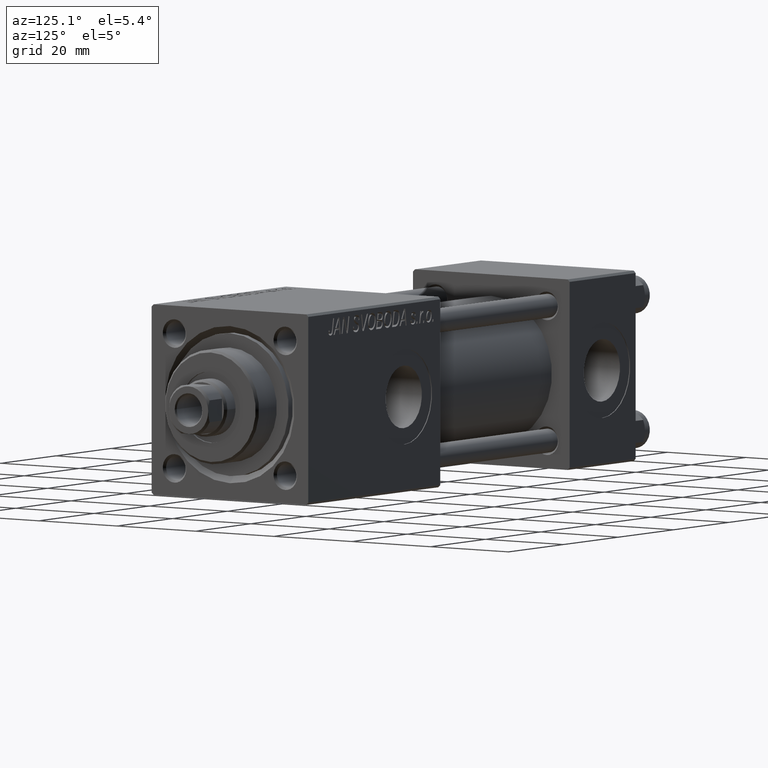
[diagram: clean part render]
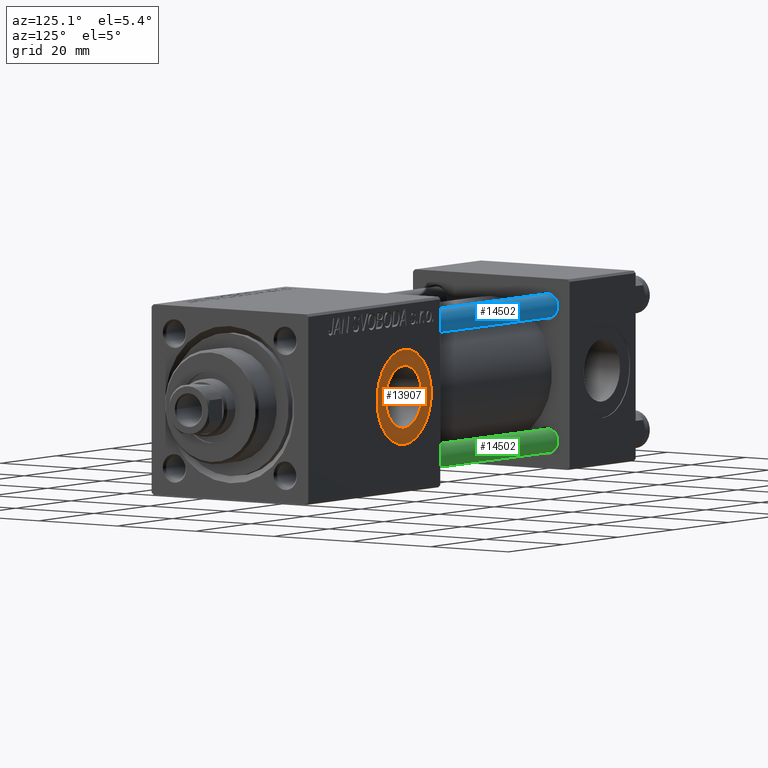
[diagram: same view with three faces highlighted in distinct colors, each labeled with its STEP entity id]
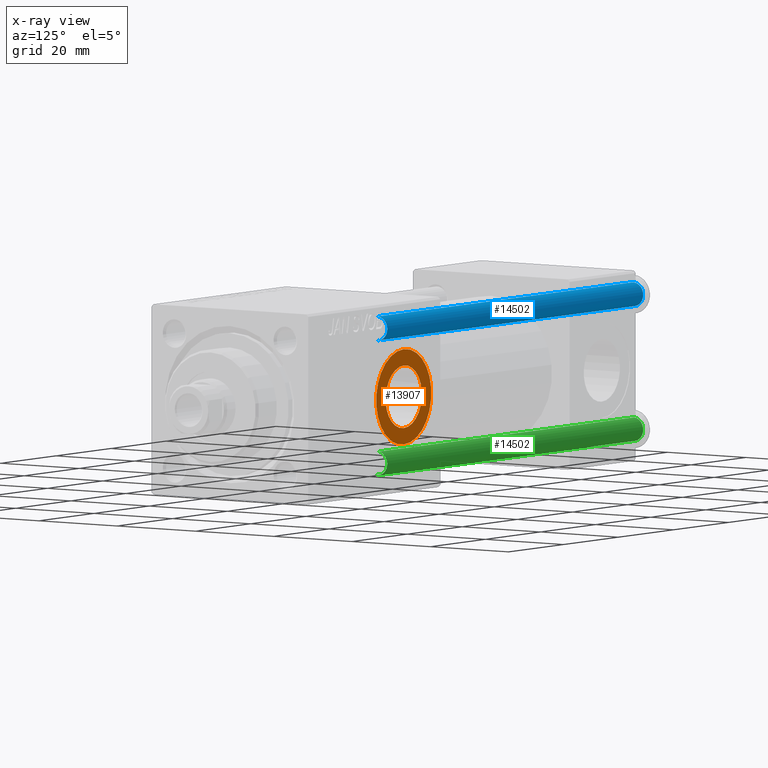
[diagram: x-ray of the same camera — body ghosted, the three highlighted faces saturated]
A machine part, auxiliary view with three faces highlighted in distinct colors.
The next image is the same camera in x-ray (body ghosted, the three faces saturated) — at least one of them is partly hidden behind the body in this view.
Their STEP definitions:

[orange] entity #13907 — the highlighted planar face has unit normal (0, 1, 0).
#4534 = CARTESIAN_POINT ( 'NONE',  ( 84.00000000000000000, 19.79999999999999716, 0.000000000000000000 ) ) ;
#6397 = EDGE_CURVE ( 'NONE', #36899, #20127, #16198, .T. ) ;
#6472 = ORIENTED_EDGE ( 'NONE', *, *, #40405, .T. ) ;
#9147 = CARTESIAN_POINT ( 'NONE',  ( 84.00000000000000000, 19.79999999999999716, 6.580000000001541061 ) ) ;
#11977 = DIRECTION ( 'NONE',  ( 0.000000000000000000, 1.000000000000000000, 0.000000000000000000 ) ) ;
#12143 = DIRECTION ( 'NONE',  ( 0.000000000000000000, 1.000000000000000000, 0.000000000000000000 ) ) ;
#12476 = CARTESIAN_POINT ( 'NONE',  ( 84.00000000000000000, 19.79999999999999716, 0.000000000000000000 ) ) ;
#12646 = CARTESIAN_POINT ( 'NONE',  ( 84.00000000000000000, 19.79999999999999716, 10.00000000000153300 ) ) ;
#13907 = ADVANCED_FACE ( 'NONE', ( #38781, #16698 ), #20011, .T. ) ;
#14082 = EDGE_LOOP ( 'NONE', ( #21300, #30943 ) ) ;
#14695 = DIRECTION ( 'NONE',  ( 0.000000000000000000, 0.000000000000000000, 1.000000000000000000 ) ) ;
#16198 = CIRCLE ( 'NONE', #41281, 6.580000000001541061 ) ;
#16627 = VERTEX_POINT ( 'NONE', #12646 ) ;
#16698 = FACE_OUTER_BOUND ( 'NONE', #35382, .T. ) ;
#17040 = ORIENTED_EDGE ( 'NONE', *, *, #20663, .T. ) ;
#19743 = AXIS2_PLACEMENT_3D ( 'NONE', #49670, #33953, #14695 ) ;
#20011 = PLANE ( 'NONE',  #30043 ) ;
#20127 = VERTEX_POINT ( 'NONE', #26764 ) ;
#20663 = EDGE_CURVE ( 'NONE', #16627, #22763, #33487, .T. ) ;
#21300 = ORIENTED_EDGE ( 'NONE', *, *, #6397, .F. ) ;
#22763 = VERTEX_POINT ( 'NONE', #35033 ) ;
#24367 = DIRECTION ( 'NONE',  ( 0.000000000000000000, 0.000000000000000000, 1.000000000000000000 ) ) ;
#25306 = DIRECTION ( 'NONE',  ( 0.000000000000000000, 0.000000000000000000, 1.000000000000000000 ) ) ;
#25568 = CARTESIAN_POINT ( 'NONE',  ( 84.00000000000000000, 19.79999999999999716, 0.000000000000000000 ) ) ;
#26764 = CARTESIAN_POINT ( 'NONE',  ( 84.00000000000000000, 19.79999999999999716, -6.580000000001541061 ) ) ;
#28099 = DIRECTION ( 'NONE',  ( 0.000000000000000000, -0.000000000000000000, 1.000000000000000000 ) ) ;
#28321 = CARTESIAN_POINT ( 'NONE',  ( 84.00000000000000000, 19.79999999999999716, 0.000000000000000000 ) ) ;
#28745 = AXIS2_PLACEMENT_3D ( 'NONE', #12476, #11977, #24367 ) ;
#30043 = AXIS2_PLACEMENT_3D ( 'NONE', #4534, #12143, #28099 ) ;
#30943 = ORIENTED_EDGE ( 'NONE', *, *, #49554, .F. ) ;
#33487 = CIRCLE ( 'NONE', #19743, 10.00000000000153300 ) ;
#33953 = DIRECTION ( 'NONE',  ( 0.000000000000000000, 1.000000000000000000, 0.000000000000000000 ) ) ;
#35033 = CARTESIAN_POINT ( 'NONE',  ( 84.00000000000000000, 19.79999999999999716, -10.00000000000153300 ) ) ;
#35382 = EDGE_LOOP ( 'NONE', ( #17040, #6472 ) ) ;
#36899 = VERTEX_POINT ( 'NONE', #9147 ) ;
#38322 = AXIS2_PLACEMENT_3D ( 'NONE', #28321, #43797, #44545 ) ;
#38781 = FACE_BOUND ( 'NONE', #14082, .T. ) ;
#40405 = EDGE_CURVE ( 'NONE', #22763, #16627, #44792, .T. ) ;
#41281 = AXIS2_PLACEMENT_3D ( 'NONE', #25568, #41298, #25306 ) ;
#41298 = DIRECTION ( 'NONE',  ( 0.000000000000000000, 1.000000000000000000, 0.000000000000000000 ) ) ;
#43797 = DIRECTION ( 'NONE',  ( 0.000000000000000000, 1.000000000000000000, 0.000000000000000000 ) ) ;
#44545 = DIRECTION ( 'NONE',  ( 0.000000000000000000, 0.000000000000000000, 1.000000000000000000 ) ) ;
#44792 = CIRCLE ( 'NONE', #38322, 10.00000000000153300 ) ;
#48982 = CIRCLE ( 'NONE', #28745, 6.580000000001541061 ) ;
#49554 = EDGE_CURVE ( 'NONE', #20127, #36899, #48982, .T. ) ;
#49670 = CARTESIAN_POINT ( 'NONE',  ( 84.00000000000000000, 19.79999999999999716, 0.000000000000000000 ) ) ;

[blue] entity #14502 — the highlighted cylindrical surface (edge-blend (fillet) strip) has radius 2.5 mm, axis along (-1, 0, 0).
#3164 = CARTESIAN_POINT ( 'NONE',  ( 0.000000000000000000, 0.000000000000000000, 94.00000000000000000 ) ) ;
#3369 = AXIS2_PLACEMENT_3D ( 'NONE', #3164, #15095, #33344 ) ;
#3768 = CARTESIAN_POINT ( 'NONE',  ( -2.500000000000000000, 0.000000000000000000, 93.50000000000001421 ) ) ;
#4333 = LINE ( 'NONE', #31208, #35386 ) ;
#5444 = ORIENTED_EDGE ( 'NONE', *, *, #21865, .T. ) ;
#6846 = AXIS2_PLACEMENT_3D ( 'NONE', #37032, #17761, #18272 ) ;
#13042 = VERTEX_POINT ( 'NONE', #3768 ) ;
#13874 = CARTESIAN_POINT ( 'NONE',  ( -2.500000000000000000, 0.000000000000000000, 94.00000000000000000 ) ) ;
#14502 = ADVANCED_FACE ( 'NONE', ( #45509 ), #21698, .T. ) ;
#15095 = DIRECTION ( 'NONE',  ( -0.000000000000000000, -0.000000000000000000, -1.000000000000000000 ) ) ;
#15953 = CARTESIAN_POINT ( 'NONE',  ( 2.500000000000000000, 3.061616997868383141E-16, 93.50000000000001421 ) ) ;
#17761 = DIRECTION ( 'NONE',  ( 0.000000000000000000, 0.000000000000000000, -1.000000000000000000 ) ) ;
#18272 = DIRECTION ( 'NONE',  ( 1.000000000000000000, 0.000000000000000000, 0.000000000000000000 ) ) ;
#20869 = VERTEX_POINT ( 'NONE', #15953 ) ;
#21080 = CARTESIAN_POINT ( 'NONE',  ( 2.500000000000000000, 3.061616997868383141E-16, 0.5000000000000004441 ) ) ;
#21698 = CYLINDRICAL_SURFACE ( 'NONE', #3369, 2.500000000000000000 ) ;
#21865 = EDGE_CURVE ( 'NONE', #37937, #27964, #43261, .T. ) ;
#23817 = AXIS2_PLACEMENT_3D ( 'NONE', #34019, #44953, #49481 ) ;
#25010 = DIRECTION ( 'NONE',  ( -0.000000000000000000, -0.000000000000000000, -1.000000000000000000 ) ) ;
#25965 = EDGE_CURVE ( 'NONE', #13042, #20869, #48934, .T. ) ;
#27964 = VERTEX_POINT ( 'NONE', #29380 ) ;
#28574 = ORIENTED_EDGE ( 'NONE', *, *, #25965, .T. ) ;
#29380 = CARTESIAN_POINT ( 'NONE',  ( -2.500000000000000000, 0.000000000000000000, 0.5000000000000004441 ) ) ;
#30996 = VECTOR ( 'NONE', #25010, 1000.000000000000000 ) ;
#31208 = CARTESIAN_POINT ( 'NONE',  ( 2.500000000000000000, 3.061616997868383141E-16, 94.00000000000000000 ) ) ;
#32185 = ORIENTED_EDGE ( 'NONE', *, *, #40454, .F. ) ;
#32846 = EDGE_CURVE ( 'NONE', #20869, #37937, #4333, .T. ) ;
#33344 = DIRECTION ( 'NONE',  ( -1.000000000000000000, 0.000000000000000000, 0.000000000000000000 ) ) ;
#34019 = CARTESIAN_POINT ( 'NONE',  ( 0.000000000000000000, 0.000000000000000000, 0.5000000000000004441 ) ) ;
#35386 = VECTOR ( 'NONE', #46184, 1000.000000000000000 ) ;
#37032 = CARTESIAN_POINT ( 'NONE',  ( 0.000000000000000000, 0.000000000000000000, 93.50000000000001421 ) ) ;
#37937 = VERTEX_POINT ( 'NONE', #21080 ) ;
#40454 = EDGE_CURVE ( 'NONE', #13042, #27964, #40743, .T. ) ;
#40743 = LINE ( 'NONE', #13874, #30996 ) ;
#43261 = CIRCLE ( 'NONE', #23817, 2.500000000000000000 ) ;
#44953 = DIRECTION ( 'NONE',  ( -0.000000000000000000, -0.000000000000000000, 1.000000000000000000 ) ) ;
#45509 = FACE_OUTER_BOUND ( 'NONE', #46617, .T. ) ;
#45987 = ORIENTED_EDGE ( 'NONE', *, *, #32846, .T. ) ;
#46184 = DIRECTION ( 'NONE',  ( -0.000000000000000000, -0.000000000000000000, -1.000000000000000000 ) ) ;
#46617 = EDGE_LOOP ( 'NONE', ( #28574, #45987, #5444, #32185 ) ) ;
#48934 = CIRCLE ( 'NONE', #6846, 2.500000000000000000 ) ;
#49481 = DIRECTION ( 'NONE',  ( 1.000000000000000000, 0.000000000000000000, 0.000000000000000000 ) ) ;

[green] entity #14502 — the highlighted cylindrical surface (edge-blend (fillet) strip) has radius 2.5 mm, axis along (1, -0, 0).
#3164 = CARTESIAN_POINT ( 'NONE',  ( 0.000000000000000000, 0.000000000000000000, 94.00000000000000000 ) ) ;
#3369 = AXIS2_PLACEMENT_3D ( 'NONE', #3164, #15095, #33344 ) ;
#3768 = CARTESIAN_POINT ( 'NONE',  ( -2.500000000000000000, 0.000000000000000000, 93.50000000000001421 ) ) ;
#4333 = LINE ( 'NONE', #31208, #35386 ) ;
#5444 = ORIENTED_EDGE ( 'NONE', *, *, #21865, .T. ) ;
#6846 = AXIS2_PLACEMENT_3D ( 'NONE', #37032, #17761, #18272 ) ;
#13042 = VERTEX_POINT ( 'NONE', #3768 ) ;
#13874 = CARTESIAN_POINT ( 'NONE',  ( -2.500000000000000000, 0.000000000000000000, 94.00000000000000000 ) ) ;
#14502 = ADVANCED_FACE ( 'NONE', ( #45509 ), #21698, .T. ) ;
#15095 = DIRECTION ( 'NONE',  ( -0.000000000000000000, -0.000000000000000000, -1.000000000000000000 ) ) ;
#15953 = CARTESIAN_POINT ( 'NONE',  ( 2.500000000000000000, 3.061616997868383141E-16, 93.50000000000001421 ) ) ;
#17761 = DIRECTION ( 'NONE',  ( 0.000000000000000000, 0.000000000000000000, -1.000000000000000000 ) ) ;
#18272 = DIRECTION ( 'NONE',  ( 1.000000000000000000, 0.000000000000000000, 0.000000000000000000 ) ) ;
#20869 = VERTEX_POINT ( 'NONE', #15953 ) ;
#21080 = CARTESIAN_POINT ( 'NONE',  ( 2.500000000000000000, 3.061616997868383141E-16, 0.5000000000000004441 ) ) ;
#21698 = CYLINDRICAL_SURFACE ( 'NONE', #3369, 2.500000000000000000 ) ;
#21865 = EDGE_CURVE ( 'NONE', #37937, #27964, #43261, .T. ) ;
#23817 = AXIS2_PLACEMENT_3D ( 'NONE', #34019, #44953, #49481 ) ;
#25010 = DIRECTION ( 'NONE',  ( -0.000000000000000000, -0.000000000000000000, -1.000000000000000000 ) ) ;
#25965 = EDGE_CURVE ( 'NONE', #13042, #20869, #48934, .T. ) ;
#27964 = VERTEX_POINT ( 'NONE', #29380 ) ;
#28574 = ORIENTED_EDGE ( 'NONE', *, *, #25965, .T. ) ;
#29380 = CARTESIAN_POINT ( 'NONE',  ( -2.500000000000000000, 0.000000000000000000, 0.5000000000000004441 ) ) ;
#30996 = VECTOR ( 'NONE', #25010, 1000.000000000000000 ) ;
#31208 = CARTESIAN_POINT ( 'NONE',  ( 2.500000000000000000, 3.061616997868383141E-16, 94.00000000000000000 ) ) ;
#32185 = ORIENTED_EDGE ( 'NONE', *, *, #40454, .F. ) ;
#32846 = EDGE_CURVE ( 'NONE', #20869, #37937, #4333, .T. ) ;
#33344 = DIRECTION ( 'NONE',  ( -1.000000000000000000, 0.000000000000000000, 0.000000000000000000 ) ) ;
#34019 = CARTESIAN_POINT ( 'NONE',  ( 0.000000000000000000, 0.000000000000000000, 0.5000000000000004441 ) ) ;
#35386 = VECTOR ( 'NONE', #46184, 1000.000000000000000 ) ;
#37032 = CARTESIAN_POINT ( 'NONE',  ( 0.000000000000000000, 0.000000000000000000, 93.50000000000001421 ) ) ;
#37937 = VERTEX_POINT ( 'NONE', #21080 ) ;
#40454 = EDGE_CURVE ( 'NONE', #13042, #27964, #40743, .T. ) ;
#40743 = LINE ( 'NONE', #13874, #30996 ) ;
#43261 = CIRCLE ( 'NONE', #23817, 2.500000000000000000 ) ;
#44953 = DIRECTION ( 'NONE',  ( -0.000000000000000000, -0.000000000000000000, 1.000000000000000000 ) ) ;
#45509 = FACE_OUTER_BOUND ( 'NONE', #46617, .T. ) ;
#45987 = ORIENTED_EDGE ( 'NONE', *, *, #32846, .T. ) ;
#46184 = DIRECTION ( 'NONE',  ( -0.000000000000000000, -0.000000000000000000, -1.000000000000000000 ) ) ;
#46617 = EDGE_LOOP ( 'NONE', ( #28574, #45987, #5444, #32185 ) ) ;
#48934 = CIRCLE ( 'NONE', #6846, 2.500000000000000000 ) ;
#49481 = DIRECTION ( 'NONE',  ( 1.000000000000000000, 0.000000000000000000, 0.000000000000000000 ) ) ;